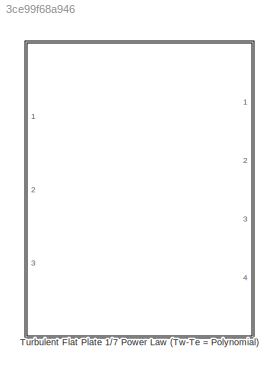
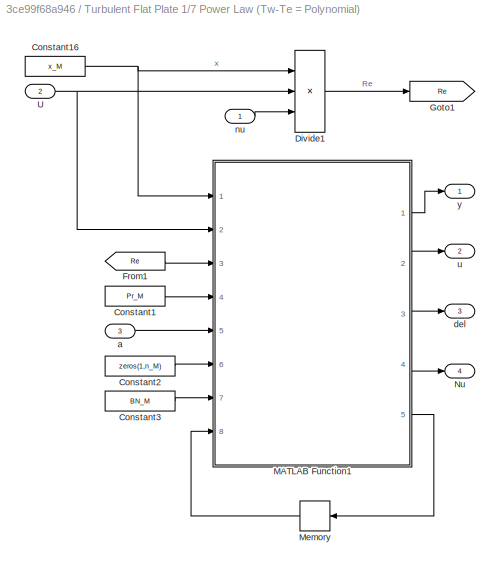
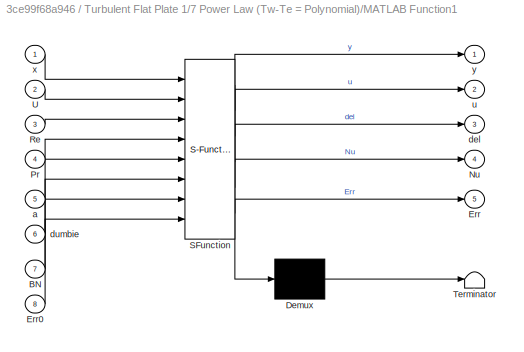
MODEL slx_3ce99f68a946
KIND library
CONFIG AbsTol = auto
CONFIG FixedStep = auto
CONFIG MaxStep = auto
CONFIG MinStep = auto
CONFIG RelTol = 1e-3
CONFIG SampleTimeConstraint = Unconstrained
CONFIG Solver = ode45
CONFIG SolverMode = Auto
CONFIG SolverName = ode45
CONFIG StartTime = 0.0
CONFIG StopTime = 10.0
BLOCK [SubSystem] Turbulent Flat Plate 1//7 Power Law (Tw-Te = Polynomial)
  Ports = [3, 4]
  RequestExecContextInheritance = off
BLOCK [Constant] Turbulent Flat Plate 1//7 Power Law (Tw-Te = Polynomial)/Constant1
  Value = Pr_M
BLOCK [Constant] Turbulent Flat Plate 1//7 Power Law (Tw-Te = Polynomial)/Constant16
  Value = x_M
BLOCK [Constant] Turbulent Flat Plate 1//7 Power Law (Tw-Te = Polynomial)/Constant2
  Value = zeros(1,n_M)
BLOCK [Constant] Turbulent Flat Plate 1//7 Power Law (Tw-Te = Polynomial)/Constant3
  Value = BN_M
BLOCK [Product] Turbulent Flat Plate 1//7 Power Law (Tw-Te = Polynomial)/Divide1
  InputSameDT = off
  Inputs = **/
  OutDataTypeStr = Inherit: Inherit via internal rule
  Ports = [3, 1]
  RndMeth = Floor
  SaturateOnIntegerOverflow = off
BLOCK [From] Turbulent Flat Plate 1//7 Power Law (Tw-Te = Polynomial)/From1
  GotoTag = Re
BLOCK [Goto] Turbulent Flat Plate 1//7 Power Law (Tw-Te = Polynomial)/Goto1
  GotoTag = Re
BLOCK [SubSystem] Turbulent Flat Plate 1//7 Power Law (Tw-Te = Polynomial)/MATLAB Function1
  ErrorFcn = Stateflow.Translate.translate
  PermitHierarchicalResolution = ExplicitOnly
  Ports = [8, 5]
  RequestExecContextInheritance = off
  SFBlockType = MATLAB Function
  TreatAsAtomicUnit = on
BLOCK [Demux] Turbulent Flat Plate 1//7 Power Law (Tw-Te = Polynomial)/MATLAB Function1/ Demux 
  Outputs = 1
  Ports = [1, 1]
BLOCK [S-Function] Turbulent Flat Plate 1//7 Power Law (Tw-Te = Polynomial)/MATLAB Function1/ SFunction 
  EnableBusSupport = on
  FunctionName = sf_sfun
  PortCounts = [8 6]
  Ports = [8, 6]
  Tag = Stateflow S-Function lib_Convection_TurbFlatPlatePowLawTempVary 1
BLOCK [Terminator] Turbulent Flat Plate 1//7 Power Law (Tw-Te = Polynomial)/MATLAB Function1/ Terminator 
BLOCK [Inport] Turbulent Flat Plate 1//7 Power Law (Tw-Te = Polynomial)/MATLAB Function1/BN
  IconDisplay = Port number
  Port = 7
BLOCK [Outport] Turbulent Flat Plate 1//7 Power Law (Tw-Te = Polynomial)/MATLAB Function1/Err
  IconDisplay = Port number
  Port = 5
BLOCK [Inport] Turbulent Flat Plate 1//7 Power Law (Tw-Te = Polynomial)/MATLAB Function1/Err0
  IconDisplay = Port number
  Port = 8
BLOCK [Outport] Turbulent Flat Plate 1//7 Power Law (Tw-Te = Polynomial)/MATLAB Function1/Nu
  IconDisplay = Port number
  Port = 4
BLOCK [Inport] Turbulent Flat Plate 1//7 Power Law (Tw-Te = Polynomial)/MATLAB Function1/Pr
  IconDisplay = Port number
  Port = 4
BLOCK [Inport] Turbulent Flat Plate 1//7 Power Law (Tw-Te = Polynomial)/MATLAB Function1/Re
  IconDisplay = Port number
  Port = 3
BLOCK [Inport] Turbulent Flat Plate 1//7 Power Law (Tw-Te = Polynomial)/MATLAB Function1/U
  IconDisplay = Port number
  Port = 2
BLOCK [Inport] Turbulent Flat Plate 1//7 Power Law (Tw-Te = Polynomial)/MATLAB Function1/a
  IconDisplay = Port number
  Port = 5
BLOCK [Outport] Turbulent Flat Plate 1//7 Power Law (Tw-Te = Polynomial)/MATLAB Function1/del
  IconDisplay = Port number
  Port = 3
BLOCK [Inport] Turbulent Flat Plate 1//7 Power Law (Tw-Te = Polynomial)/MATLAB Function1/dumbie
  IconDisplay = Port number
  Port = 6
BLOCK [Outport] Turbulent Flat Plate 1//7 Power Law (Tw-Te = Polynomial)/MATLAB Function1/u
  IconDisplay = Port number
  Port = 2
BLOCK [Inport] Turbulent Flat Plate 1//7 Power Law (Tw-Te = Polynomial)/MATLAB Function1/x
  IconDisplay = Port number
BLOCK [Outport] Turbulent Flat Plate 1//7 Power Law (Tw-Te = Polynomial)/MATLAB Function1/y
  IconDisplay = Port number
BLOCK [Memory] Turbulent Flat Plate 1//7 Power Law (Tw-Te = Polynomial)/Memory
  X0 = zeros(1,14)
BLOCK [Outport] Turbulent Flat Plate 1//7 Power Law (Tw-Te = Polynomial)/Nu
  IconDisplay = Port number
  Port = 4
BLOCK [Inport] Turbulent Flat Plate 1//7 Power Law (Tw-Te = Polynomial)/U
  IconDisplay = Port number
  Port = 2
BLOCK [Inport] Turbulent Flat Plate 1//7 Power Law (Tw-Te = Polynomial)/a
  IconDisplay = Port number
  Port = 3
BLOCK [Outport] Turbulent Flat Plate 1//7 Power Law (Tw-Te = Polynomial)/del
  IconDisplay = Port number
  Port = 3
BLOCK [Inport] Turbulent Flat Plate 1//7 Power Law (Tw-Te = Polynomial)/nu
  IconDisplay = Port number
BLOCK [Outport] Turbulent Flat Plate 1//7 Power Law (Tw-Te = Polynomial)/u
  IconDisplay = Port number
  Port = 2
BLOCK [Outport] Turbulent Flat Plate 1//7 Power Law (Tw-Te = Polynomial)/y
  IconDisplay = Port number
NET Turbulent Flat Plate 1//7 Power Law (Tw-Te = Polynomial)/Constant16:1 -> Turbulent Flat Plate 1//7 Power Law (Tw-Te = Polynomial)/Divide1:1, Turbulent Flat Plate 1//7 Power Law (Tw-Te = Polynomial)/MATLAB Function1:1
LINE Turbulent Flat Plate 1//7 Power Law (Tw-Te = Polynomial)/Constant1:1 -> Turbulent Flat Plate 1//7 Power Law (Tw-Te = Polynomial)/MATLAB Function1:4
LINE Turbulent Flat Plate 1//7 Power Law (Tw-Te = Polynomial)/Constant2:1 -> Turbulent Flat Plate 1//7 Power Law (Tw-Te = Polynomial)/MATLAB Function1:6
LINE Turbulent Flat Plate 1//7 Power Law (Tw-Te = Polynomial)/Constant3:1 -> Turbulent Flat Plate 1//7 Power Law (Tw-Te = Polynomial)/MATLAB Function1:7
LINE Turbulent Flat Plate 1//7 Power Law (Tw-Te = Polynomial)/Divide1:1 -> Turbulent Flat Plate 1//7 Power Law (Tw-Te = Polynomial)/Goto1:1
LINE Turbulent Flat Plate 1//7 Power Law (Tw-Te = Polynomial)/From1:1 -> Turbulent Flat Plate 1//7 Power Law (Tw-Te = Polynomial)/MATLAB Function1:3
LINE Turbulent Flat Plate 1//7 Power Law (Tw-Te = Polynomial)/MATLAB Function1:1 -> Turbulent Flat Plate 1//7 Power Law (Tw-Te = Polynomial)/y:1
LINE Turbulent Flat Plate 1//7 Power Law (Tw-Te = Polynomial)/MATLAB Function1:2 -> Turbulent Flat Plate 1//7 Power Law (Tw-Te = Polynomial)/u:1
LINE Turbulent Flat Plate 1//7 Power Law (Tw-Te = Polynomial)/MATLAB Function1:3 -> Turbulent Flat Plate 1//7 Power Law (Tw-Te = Polynomial)/del:1
LINE Turbulent Flat Plate 1//7 Power Law (Tw-Te = Polynomial)/MATLAB Function1:4 -> Turbulent Flat Plate 1//7 Power Law (Tw-Te = Polynomial)/Nu:1
LINE Turbulent Flat Plate 1//7 Power Law (Tw-Te = Polynomial)/MATLAB Function1:5 -> Turbulent Flat Plate 1//7 Power Law (Tw-Te = Polynomial)/Memory:1
LINE Turbulent Flat Plate 1//7 Power Law (Tw-Te = Polynomial)/Memory:1 -> Turbulent Flat Plate 1//7 Power Law (Tw-Te = Polynomial)/MATLAB Function1:8
NET Turbulent Flat Plate 1//7 Power Law (Tw-Te = Polynomial)/U:1 -> Turbulent Flat Plate 1//7 Power Law (Tw-Te = Polynomial)/Divide1:2, Turbulent Flat Plate 1//7 Power Law (Tw-Te = Polynomial)/MATLAB Function1:2
LINE Turbulent Flat Plate 1//7 Power Law (Tw-Te = Polynomial)/a:1 -> Turbulent Flat Plate 1//7 Power Law (Tw-Te = Polynomial)/MATLAB Function1:5
LINE Turbulent Flat Plate 1//7 Power Law (Tw-Te = Polynomial)/nu:1 -> Turbulent Flat Plate 1//7 Power Law (Tw-Te = Polynomial)/Divide1:3
note: NET lines group one-source signal fan-out (src -> all destinations, sorted); 1:1 wires keep LINE
CHART Turbulent Flat Plate 1//7 Power Law (Tw-Te = Polynomial)/MATLAB Function1 states=1 transitions=1
  STATE_LABEL 'eML_blk_kernel()'
  STATE_LABEL 'SCRIPT:\nfunction [y, u, del, Nu, Err] = BoundaryLayerCalcs(x,U,Re,Pr,a,dumbie,BN,Err0)\n%#codegen\n\n%Description\n% This function block computes dimensional quantities and forms the outputs\n\n%Inputs:\n% x - spatial variable along the surface [mx1]\n% U - free-stream velocity [mx1]\n% Re - Reynolds number [mx1]\n% Pr - Prandtl number [1x1]\n% a - array with polynomial coefficients for Tw-Te [px1]\n\n%Outputs...<+3608ch>'
